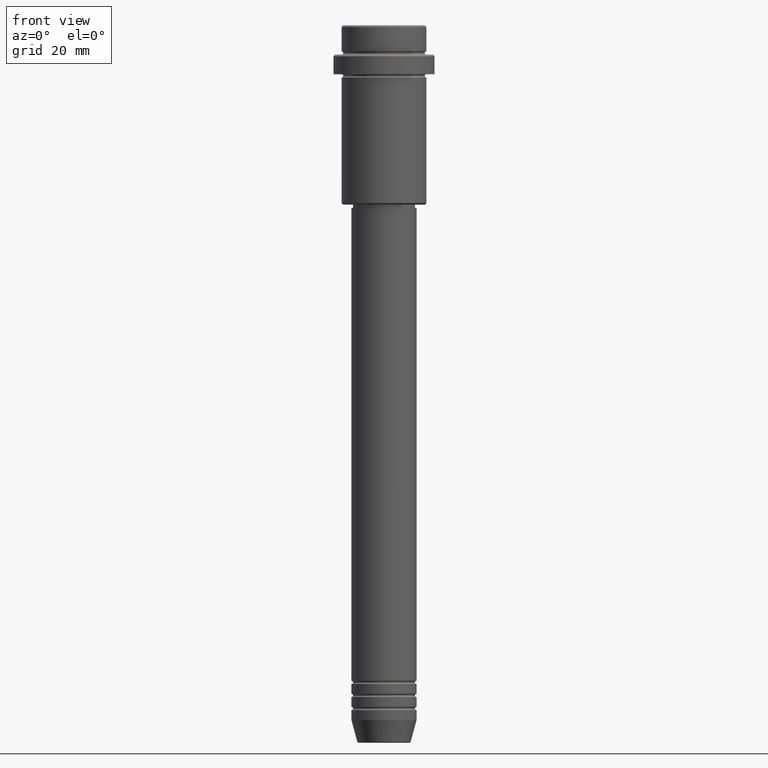
[diagram: clean part render]
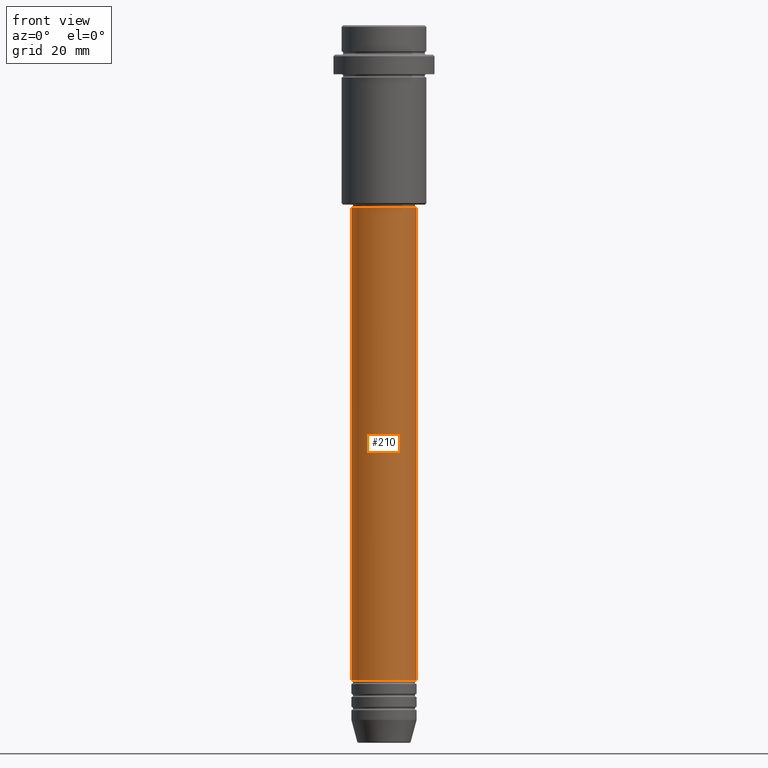
[diagram: same view with one face highlighted and labeled with its STEP entity id]
A machine part, front view. The second image highlights one B-rep face of the part: STEP entity #210.
In plain terms, the highlighted cylindrical surface (edge-blend (fillet) strip) has radius 10 mm, axis along (-0, -0, 1).
Its self-contained STEP definition (entity closure, byte-faithful):
#32 = EDGE_CURVE ( 'NONE', #401, #789, #465, .T. ) ;
#62 = FACE_OUTER_BOUND ( 'NONE', #612, .T. ) ;
#104 = CARTESIAN_POINT ( 'NONE',  ( 10.00000000000000178, 0.000000000000000000, 0.000000000000000000 ) ) ;
#120 = CIRCLE ( 'NONE', #574, 10.00000000000000000 ) ;
#144 = DIRECTION ( 'NONE',  ( -0.000000000000000000, -0.000000000000000000, 1.000000000000000000 ) ) ;
#173 = CARTESIAN_POINT ( 'NONE',  ( -10.00000000000000000, 1.224646799147353256E-15, -200.9999999999999147 ) ) ;
#210 = ADVANCED_FACE ( 'NONE', ( #62 ), #1374, .T. ) ;
#222 = AXIS2_PLACEMENT_3D ( 'NONE', #319, #414, #742 ) ;
#224 = ORIENTED_EDGE ( 'NONE', *, *, #275, .T. ) ;
#229 = LINE ( 'NONE', #104, #738 ) ;
#243 = AXIS2_PLACEMENT_3D ( 'NONE', #485, #610, #1355 ) ;
#275 = EDGE_CURVE ( 'NONE', #679, #701, #229, .T. ) ;
#319 = CARTESIAN_POINT ( 'NONE',  ( 0.000000000000000000, 0.000000000000000000, -56.00000000000002132 ) ) ;
#385 = CARTESIAN_POINT ( 'NONE',  ( -10.00000000000000178, 1.224646799147353454E-15, 0.000000000000000000 ) ) ;
#401 = VERTEX_POINT ( 'NONE', #173 ) ;
#414 = DIRECTION ( 'NONE',  ( -0.000000000000000000, -0.000000000000000000, 1.000000000000000000 ) ) ;
#425 = CARTESIAN_POINT ( 'NONE',  ( 0.000000000000000000, 0.000000000000000000, -200.9999999999999147 ) ) ;
#451 = ORIENTED_EDGE ( 'NONE', *, *, #1024, .T. ) ;
#465 = LINE ( 'NONE', #385, #1345 ) ;
#468 = ORIENTED_EDGE ( 'NONE', *, *, #32, .F. ) ;
#485 = CARTESIAN_POINT ( 'NONE',  ( 0.000000000000000000, 0.000000000000000000, 0.000000000000000000 ) ) ;
#558 = CIRCLE ( 'NONE', #222, 10.00000000000000178 ) ;
#574 = AXIS2_PLACEMENT_3D ( 'NONE', #425, #1084, #1295 ) ;
#610 = DIRECTION ( 'NONE',  ( -0.000000000000000000, -0.000000000000000000, 1.000000000000000000 ) ) ;
#612 = EDGE_LOOP ( 'NONE', ( #468, #451, #224, #1367 ) ) ;
#677 = DIRECTION ( 'NONE',  ( -0.000000000000000000, -0.000000000000000000, 1.000000000000000000 ) ) ;
#679 = VERTEX_POINT ( 'NONE', #1097 ) ;
#701 = VERTEX_POINT ( 'NONE', #1106 ) ;
#738 = VECTOR ( 'NONE', #677, 1000.000000000000000 ) ;
#742 = DIRECTION ( 'NONE',  ( 1.000000000000000000, 0.000000000000000000, 0.000000000000000000 ) ) ;
#789 = VERTEX_POINT ( 'NONE', #1358 ) ;
#929 = EDGE_CURVE ( 'NONE', #789, #701, #558, .T. ) ;
#1024 = EDGE_CURVE ( 'NONE', #401, #679, #120, .T. ) ;
#1084 = DIRECTION ( 'NONE',  ( -0.000000000000000000, -0.000000000000000000, 1.000000000000000000 ) ) ;
#1097 = CARTESIAN_POINT ( 'NONE',  ( 10.00000000000000000, 0.000000000000000000, -200.9999999999999147 ) ) ;
#1106 = CARTESIAN_POINT ( 'NONE',  ( 10.00000000000000178, 0.000000000000000000, -56.00000000000002132 ) ) ;
#1295 = DIRECTION ( 'NONE',  ( 1.000000000000000000, 0.000000000000000000, 0.000000000000000000 ) ) ;
#1345 = VECTOR ( 'NONE', #144, 1000.000000000000000 ) ;
#1355 = DIRECTION ( 'NONE',  ( 1.000000000000000000, 0.000000000000000000, 0.000000000000000000 ) ) ;
#1358 = CARTESIAN_POINT ( 'NONE',  ( -10.00000000000000178, 1.224646799147353454E-15, -56.00000000000002132 ) ) ;
#1367 = ORIENTED_EDGE ( 'NONE', *, *, #929, .F. ) ;
#1374 = CYLINDRICAL_SURFACE ( 'NONE', #243, 10.00000000000000178 ) ;